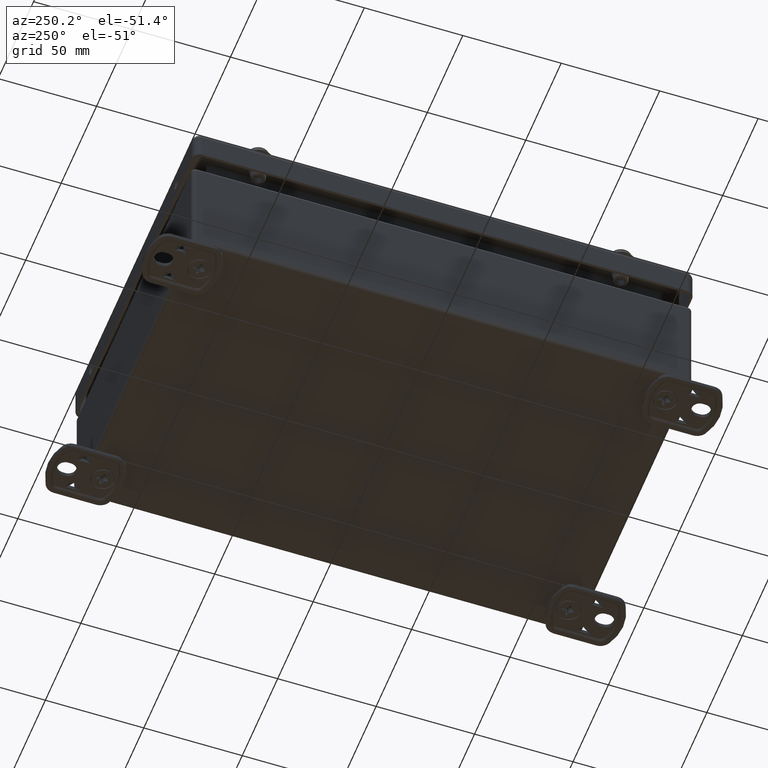
[diagram: clean part render]
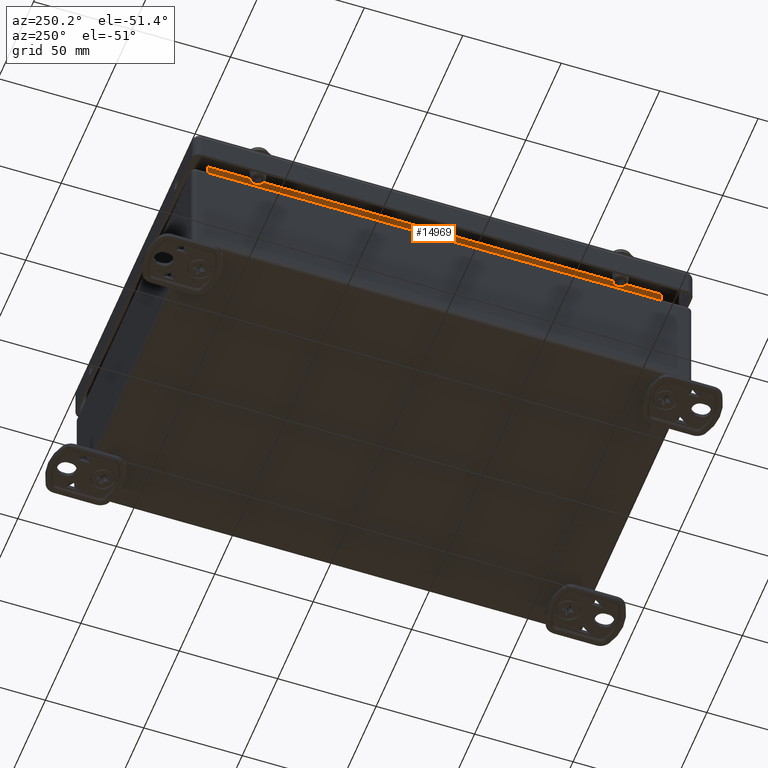
[diagram: same view with one face highlighted and labeled with its STEP entity id]
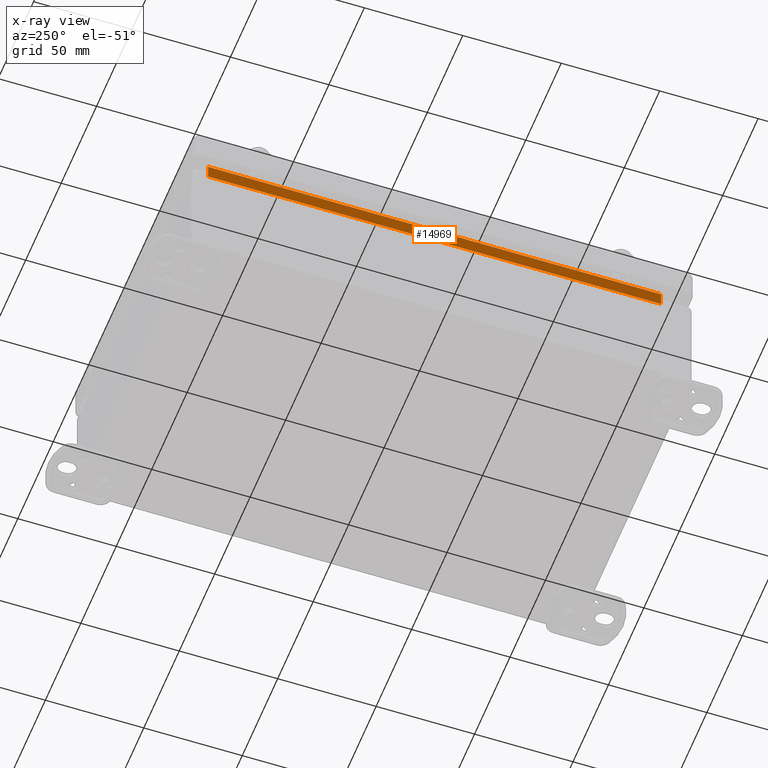
[diagram: x-ray of the same camera — body ghosted, the highlighted face saturated]
A machine part, auxiliary view. The second image highlights one B-rep face of the part: STEP entity #14969.
The next image is the same camera in x-ray: the body ghosted, the highlighted face saturated — about 0% of this face is hidden behind the body in this view.
In plain terms, the highlighted planar face has unit normal (1, -0, 0).
Its self-contained STEP definition (entity closure, byte-faithful):
#566=B_SPLINE_CURVE_WITH_KNOTS('',3,(#24077,#24078,#24079,#24080),
 .UNSPECIFIED.,.F.,.F.,(4,4),(-3.05719544906509,-3.02450206446664),
 .UNSPECIFIED.);
#570=B_SPLINE_CURVE_WITH_KNOTS('',3,(#24111,#24112,#24113,#24114),
 .UNSPECIFIED.,.F.,.F.,(4,4),(3.02838781792714,3.06112261701787),
 .UNSPECIFIED.);
#2327=FACE_OUTER_BOUND('',#3299,.T.);
#3299=EDGE_LOOP('',(#10771,#10772,#10773,#10774,#10775,#10776));
#4471=LINE('',#24051,#5525);
#4493=LINE('',#24492,#5547);
#4495=LINE('',#24504,#5549);
#4500=LINE('',#24513,#5554);
#5525=VECTOR('',#18810,0.393700787401575);
#5547=VECTOR('',#18920,0.393700787401575);
#5549=VECTOR('',#18938,0.393700787401575);
#5554=VECTOR('',#18951,0.393700787401575);
#6575=VERTEX_POINT('',#24048);
#6576=VERTEX_POINT('',#24050);
#6578=VERTEX_POINT('',#24071);
#6580=VERTEX_POINT('',#24101);
#6618=VERTEX_POINT('',#24486);
#6619=VERTEX_POINT('',#24490);
#8076=EDGE_CURVE('',#6575,#6576,#4471,.T.);
#8080=EDGE_CURVE('',#6578,#6575,#566,.T.);
#8084=EDGE_CURVE('',#6576,#6580,#570,.T.);
#8149=EDGE_CURVE('',#6618,#6619,#4493,.T.);
#8155=EDGE_CURVE('',#6580,#6618,#4495,.T.);
#8160=EDGE_CURVE('',#6619,#6578,#4500,.T.);
#10771=ORIENTED_EDGE('',*,*,#8080,.F.);
#10772=ORIENTED_EDGE('',*,*,#8160,.F.);
#10773=ORIENTED_EDGE('',*,*,#8149,.F.);
#10774=ORIENTED_EDGE('',*,*,#8155,.F.);
#10775=ORIENTED_EDGE('',*,*,#8084,.F.);
#10776=ORIENTED_EDGE('',*,*,#8076,.F.);
#14592=PLANE('',#16378);
#14969=ADVANCED_FACE('',(#2327),#14592,.F.);
#16378=AXIS2_PLACEMENT_3D('',#24512,#18949,#18950);
#18810=DIRECTION('',(1.79089879132112E-17,1.,-1.24340536430232E-16));
#18920=DIRECTION('',(-1.79089879132112E-17,-1.,1.24515250796014E-16));
#18938=DIRECTION('',(-4.44089209850063E-16,-1.23652151387092E-16,1.));
#18949=DIRECTION('center_axis',(1.,-1.79089879132112E-17,4.44089209850063E-16));
#18950=DIRECTION('ref_axis',(4.44089209850063E-16,-7.41814568202793E-18,
-1.));
#18951=DIRECTION('',(4.44089209850063E-16,1.23652151387109E-16,-1.));
#24048=CARTESIAN_POINT('',(-2.8100710545201,-4.51619742566665,2.62183125711656));
#24050=CARTESIAN_POINT('',(-2.8100710545201,4.51619742566666,2.62183125711656));
#24051=CARTESIAN_POINT('',(-2.8100710545201,3.5875282281496,2.62183125711656));
#24071=CARTESIAN_POINT('',(-2.8100710545201,-4.52907105450746,2.62128419749963));
#24077=CARTESIAN_POINT('Ctrl Pts',(-2.8100710545201,-4.52907105451106,2.62128419749886));
#24078=CARTESIAN_POINT('Ctrl Pts',(-2.8100710545201,-4.52478304414979,2.62164153403553));
#24079=CARTESIAN_POINT('Ctrl Pts',(-2.8100710545201,-4.52048789608639,2.62183125711656));
#24080=CARTESIAN_POINT('Ctrl Pts',(-2.8100710545201,-4.51619742566665,2.62183125711656));
#24101=CARTESIAN_POINT('',(-2.8100710545201,4.52907105450874,2.62128419749905));
#24111=CARTESIAN_POINT('Ctrl Pts',(-2.8100710545201,4.51619742566666,2.62183125711656));
#24112=CARTESIAN_POINT('Ctrl Pts',(-2.8100710545201,4.52049333105914,2.62183125711656));
#24113=CARTESIAN_POINT('Ctrl Pts',(-2.8100710545201,4.52478964388649,2.62164098405395));
#24114=CARTESIAN_POINT('Ctrl Pts',(-2.8100710545201,4.52907105450874,2.62128419749906));
#24486=CARTESIAN_POINT('',(-2.8100710545201,4.52907105450874,2.91599999992266));
#24490=CARTESIAN_POINT('',(-2.8100710545201,-4.52907105450874,2.91599999992266));
#24492=CARTESIAN_POINT('',(-2.8100710545201,3.5875282281496,2.91599999992266));
#24504=CARTESIAN_POINT('',(-2.8100710545201,4.52907105450874,2.18048245834961));
#24512=CARTESIAN_POINT('Origin',(-2.8100710545201,3.5875282281496,1.57200260681296));
#24513=CARTESIAN_POINT('',(-2.8100710545201,-4.52907105450874,2.18048245834961));